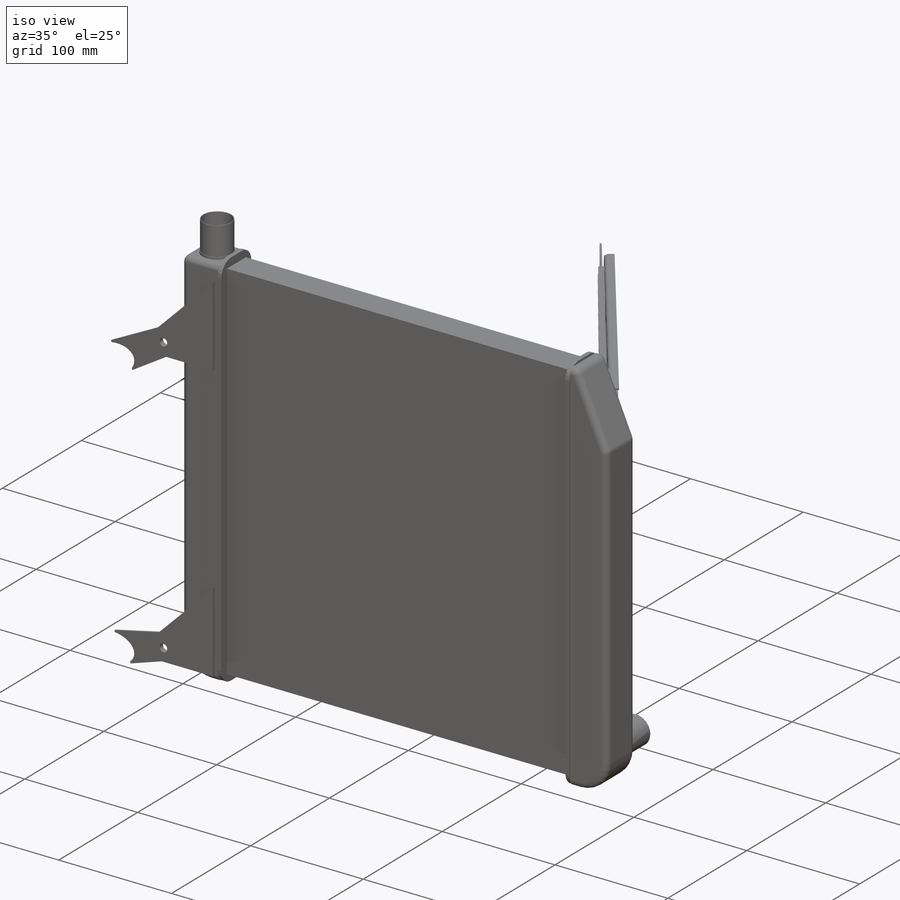
[diagram: iso view]
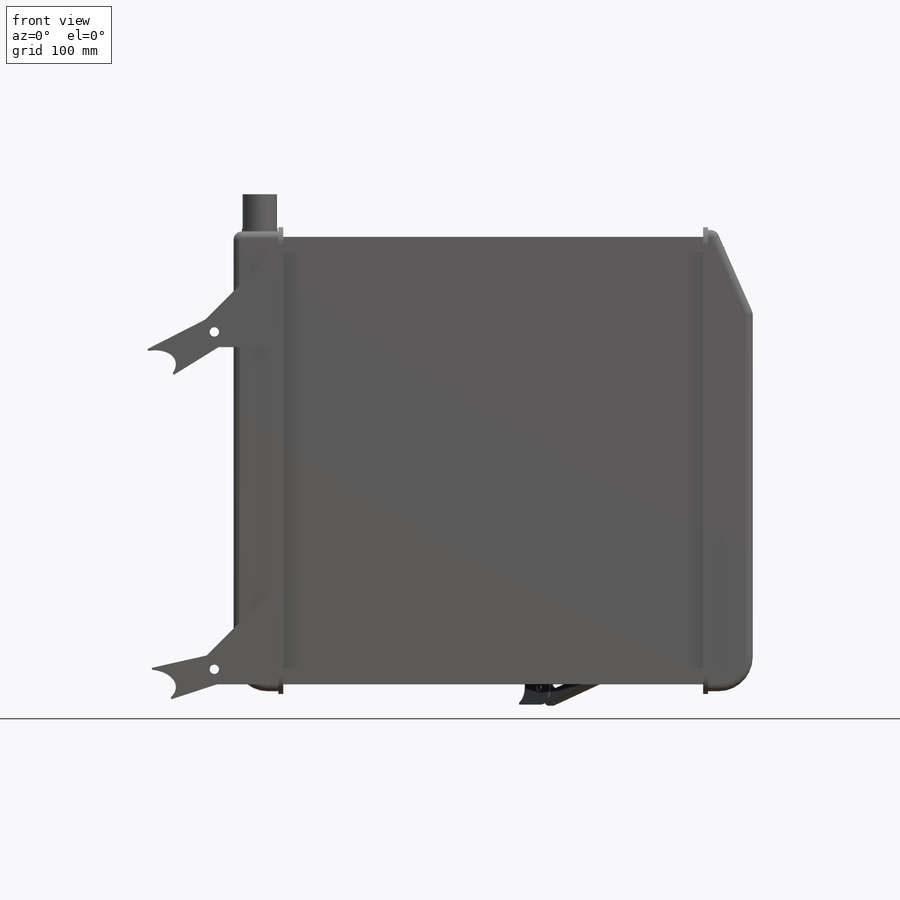
[diagram: front view]
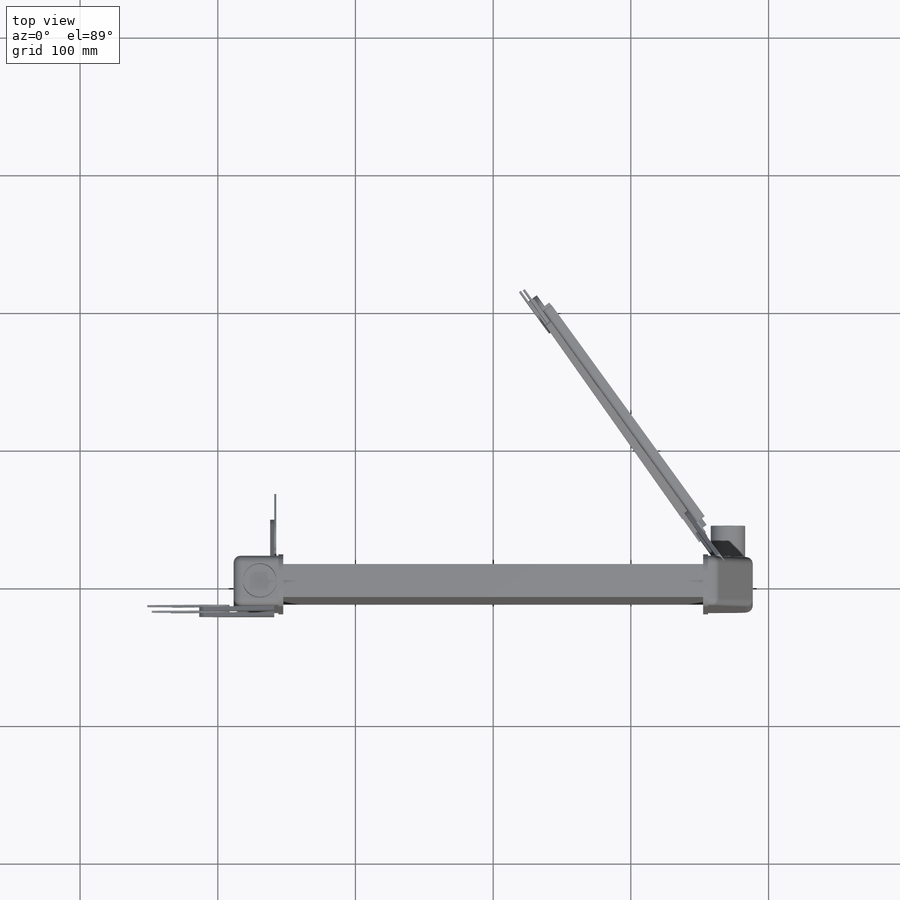
[diagram: top view]
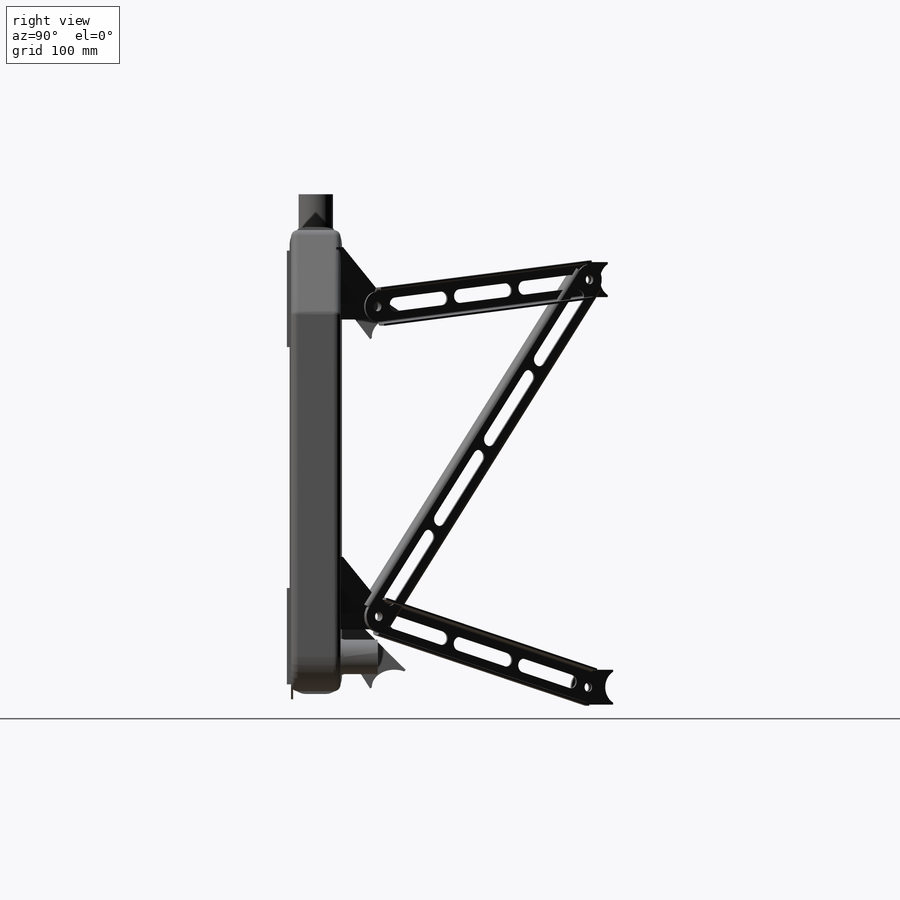
[diagram: right view]
SOLIDWORKS PART (.sldprt)
format: sldprt  version: not decoded by parser v0  size: 11,522,048 bytes
history: native  units: mm
features: sketch x33, extrude x17, delete_body x12, plane x3, sheet_metal_op x3, material x1, fillet x1, move_body x1 + 12 further entries (+11 scaffold rows collapsed; 4 parser-record rows omitted)
feature tree (98):
  scaffold x11  (default folders/planes/origin — collapsed)
  material  "ASTM A36 Steel"
  "Cut-List-Item3"
  "Cut-List-Item4"
  "Cut-List-Item5"
  "Cut-List-Item6"
  "Cut-List-Item7"
  "Cut-List-Item8"
  "Cut-List-Item9"
  "Cut-List-Item10"
  "Cut-List-Item11"
  sketch  "Sketch1"  dims[c1.D1=~254.293949mm c1.D2=~260.73177mm c2.D1=305.0mm c2.D2=325.0mm]
  extrude  "Boss-ExtrudeCore"  Depth=12mm
  sketch  "Sketch3"  dims[c1.D3=12.0mm c1.D1=~385.781616mm c1.D2=~36.069013mm c2.D1=7.0mm c2.D2=7.0mm]
  extrude  "Boss-ExtrudeInnerFlange"  Depth=3.5mm
  sketch  "Sketch5"  dims[D1=0.0mm]
  extrude  "Boss-ExtrudeOuterFlange"  Depth=3.5mm
  sketch  "Sketch4"  dims[c1.D4=25.0mm c1.D7=6.0mm c1.D1=~116.086235mm c1.D2=~220.135744mm c2.D1=~382.038378mm c2.D2=~31.879648mm c3.D1=1.75mm c3.D2=1.75mm c3.D3=32.5mm c4.D1=2.0mm c4.D2=2.0mm c4.D5=60.0mm c4.D6=6.0mm]
  extrude  "Boss-ExtrudeOuterTank"  Depth=18mm
  sketch  "Sketch6"  dims[c1.D4=25.0mm c1.D5=6.0mm c1.D1=~354.011664mm c1.D2=~31.531578mm c2.D1=32.5mm c2.D2=~2.988336mm c2.D3=2.0mm]
  extrude  "Boss-ExtrudeInnerTank"  Depth=18mm
  fillet  "Fillet1"  Radius=5mm
  sketch  "Sketch7"  dims[D1=26.0mm D2=1.0mm D3=~161.810816mm]
  extrude  "Boss-ExtrudeUpperBung"  Depth=2mm
  sketch  "Sketch8"  dims[D1=26.0mm D2=2.0mm D3=18.0mm D4=162.0mm]
  extrude  "Boss-ExtrudeLowerBung"  Depth=2mm
  sketch  "Sketch9"  dims[D1=25.0mm]
  extrude  "Boss-ExtrudeLowerTube"  Depth=25mm
  sketch  "Sketch10"  dims[D1=25.0mm]
  extrude  "Boss-ExtrudeUpperTube"  Depth=25mm
  sketch  "Sketch11"  dims[c1.D1=6.7564mm c1.D4=~11.029452mm c1.D7=~13.174722mm c1.D8=10.0mm c1.D2=11.0mm c1.D3=11.0mm c2.D4=~46.123181mm c3.D4=45.0deg c3.D5=3.0mm c3.D6=14.0mm c3.D7=~48.214246mm c4.D7=45.0deg c4.D8=245.0mm]
  extrude  "Boss-ExtrudeMntFlangeOuterFront"  Depth=3mm
  plane  "PlaneMntFlangeInnerFront"  Offset=3mm
  sketch  "Sketch12"  dims[c1.D1=6.7564mm c1.D4=11.0mm c1.D7=~9.876221mm c2.D1=~0.236696mm c2.D2=11.0mm c2.D3=11.0mm c2.D4=~14.920757mm c3.D4=45.0deg c3.D5=16.0mm c3.D6=20.0mm c3.D7=16.0mm c4.D7=45.0deg c4.D8=15.0mm]
  extrude  "Boss-ExtrudeMntFlangeInnerFront"  Depth=3mm
  sketch  "Sketch13"  dims[D1=6.0mm]
  plane  "PlaneMntFlangeInnerRear"
  sketch  "Sketch14"  dims[c1.D1=6.7564mm c1.D2=10.0mm c1.D4=10.0mm c2.D1=~0.022642mm c2.D2=6.0mm c2.D3=~31.247717mm c3.D3=45.0deg c3.D4=225.0mm c3.D5=6.0mm]
  extrude  "Boss-ExtrudeMntFlangeInnerRear"  Depth=3mm
  sketch  "3DSketchFillerNeck"  dims[D1=27.0mm]
  sketch  "3DSketch2"
  plane  "Plane1"
  sketch  "Sketch16"  dims[D1=25.4mm D2=1.2mm]
  sketch  "Sketch17"  dims[c1.D1=22.0mm c1.D3=22.0mm c2.D1=1.5mm c2.D2=1.5mm c2.D3=1.5mm c2.D4=1.5mm]
  extrude  "Boss-ExtrudeFrameTabsOuterFront"  Depth=1.5mm
  sketch  "Sketch18"  dims[c1.D1=~30.04742mm c1.D3=~28.199947mm c2.D1=1.5mm c2.D2=1.5mm c3.D1=1.5mm c3.D2=1.5mm c3.D3=1.5mm c3.D4=1.5mm]
  extrude  "Boss-ExtrudeFrameTabsInnerFront"  Depth=1.5mm
  sketch  "Sketch20"  dims[c1.D1=6.7564mm c1.D3=~27.69917mm c2.D1=~6.055905mm c2.D2=1.5mm c2.D3=1.5mm c2.D4=1.5mm]
  extrude  "Boss-ExtrudeFrameTabsInnerRear"  Depth=1.5mm
  sketch  "Sketch19"  dims[c1.D1=1.5mm c1.D2=1.5mm c2.D1=22.0mm c2.D2=10.0mm c2.D3=16.0mm c2.D4=16.0mm c2.D5=10.0mm]
  extrude  "Boss-ExtrudeSupportRearHoriz"  Depth=1.5mm
  sketch  "Sketch21"  dims[D1=16.0mm D2=10.0mm]
  extrude  "Boss-ExtrudeSupportRearDiag"  Depth=1.5mm
  sheet_metal_op  "Sheet-MetalSupportRearUpper"
  sketch  "Sketch28"
  sketch  "Sketch29"  dims[c1.D1=1.5mm c1.D4=90.0deg c1.D5=1.0 c1.D8=0.75mm c1.D9=0.75mm c1.EdgeBend2=0.0 c2.D1=1.5mm c2.D4=90.0deg c2.D5=2.0 c2.D8=0.75mm c2.D9=0.75mm c3.D1=1.5mm c3.D2=500.0mm c3.D3=0.0mm c3.D6=10.0mm c3.D7=6.0mm c3.D8=1.0mm c4.D1=1.5mm c4.D2=500.0mm c4.D3=0.0mm c4.D7=1.5mm c4.D6=500.0mm c5.D1=1.5mm]
  sheet_metal_op  "Edge-FlangeSupportRearLower"
  sketch  "Sketch36"
  sketch  "Sketch37"  dims[c1.EdgeBend3=0.0 c1.D1=1.5mm c1.D4=90.0deg c1.D5=1.0 c1.D8=0.0mm c1.D9=0.0mm c1.EdgeBend4=0.0 c2.D1=1.5mm c2.D4=90.0deg c2.D5=2.0 c2.D8=0.0mm c2.D9=0.0mm c3.D1=1.5mm c3.D2=500.0mm c3.D3=0.0mm c3.D6=10.0mm c3.D7=6.0mm c3.D8=1.0mm c4.D1=1.5mm c4.D2=500.0mm c4.D3=0.0mm c4.D7=1.5mm c4.D6=500.0mm c5.D1=1.5mm]
  sheet_metal_op  "Edge-FlangeSupportRearDiag"
  sketch  "Sketch44"
  sketch  "Sketch45"  dims[c1.EdgeBend5=0.0 c1.D1=1.5mm c1.D4=90.0deg c1.D5=1.0 c1.D8=0.0mm c1.D9=0.0mm c1.EdgeBend6=0.0 c2.D1=1.5mm c2.D4=90.0deg c2.D5=2.0 c2.D8=0.0mm c2.D9=0.0mm c3.D1=1.5mm c3.D2=500.0mm c3.D3=0.0mm c3.D6=10.0mm c3.D7=6.0mm c3.D8=1.0mm]
  delete_body  "Body-DeleteFrameTubes"
  delete_body  "Body-Delete1"
  delete_body  "Body-Delete2"
  delete_body  "Body-Delete3"
  delete_body  "Body-Delete4"
  delete_body  "Body-Delete5"
  delete_body  "Body-Delete6"
  delete_body  "Body-Delete7"
  delete_body  "Body-Delete8"
  delete_body  "Body-Delete9"
  delete_body  "Body-Delete10"
  delete_body  "Body-Delete11"
  "Flat-Pattern1"
  sketch  "Bend-Lines1"
  sketch  "Bounding-Box1"
  parser-record x4  (decoder bookkeeping rows leaked as tree rows — omitted from the tree; the rows remain in map.json)
  "Flat-Pattern2"
  sketch  "Bend-Lines2"
  sketch  "Bounding-Box2"
  "Flat-Pattern3"
  sketch  "Bend-Lines3"
  sketch  "Bounding-Box3"
  move_body  "Body-Move/Copy1"
decode coverage: 41 of 67 modeling features carry decoded parameters; 12 rows unclassified (native names shown)
note: ~ marks probable driven/reference dimensions
note: suppression state not decoded; provenance and decode notes live in map.json
